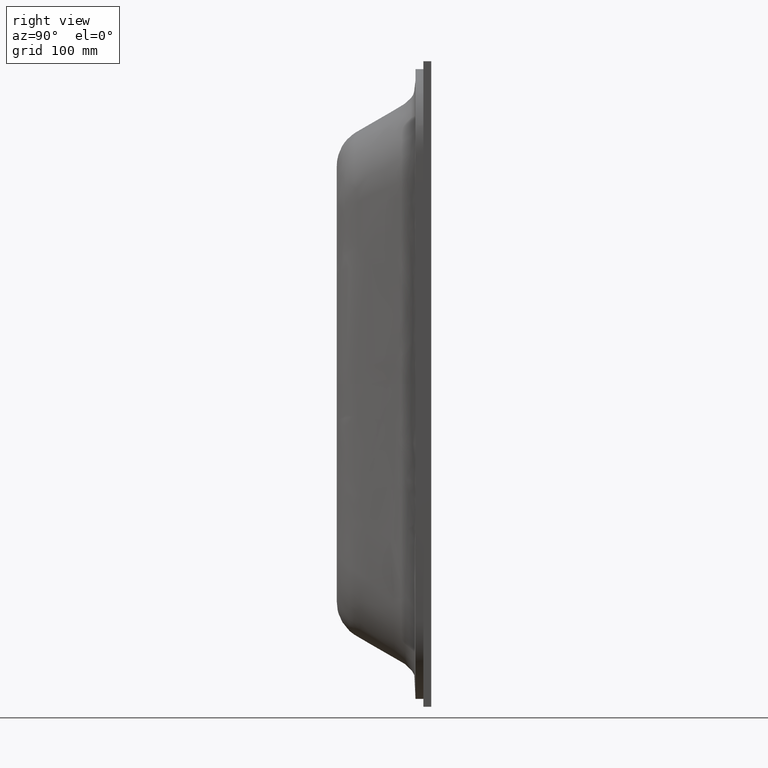
[diagram: clean part render]
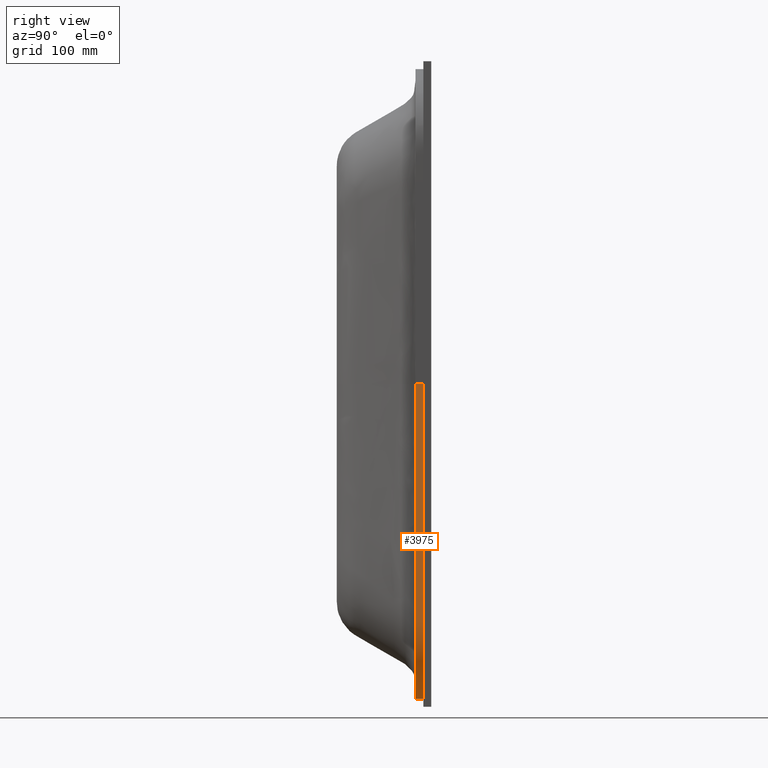
[diagram: same view with one face highlighted and labeled with its STEP entity id]
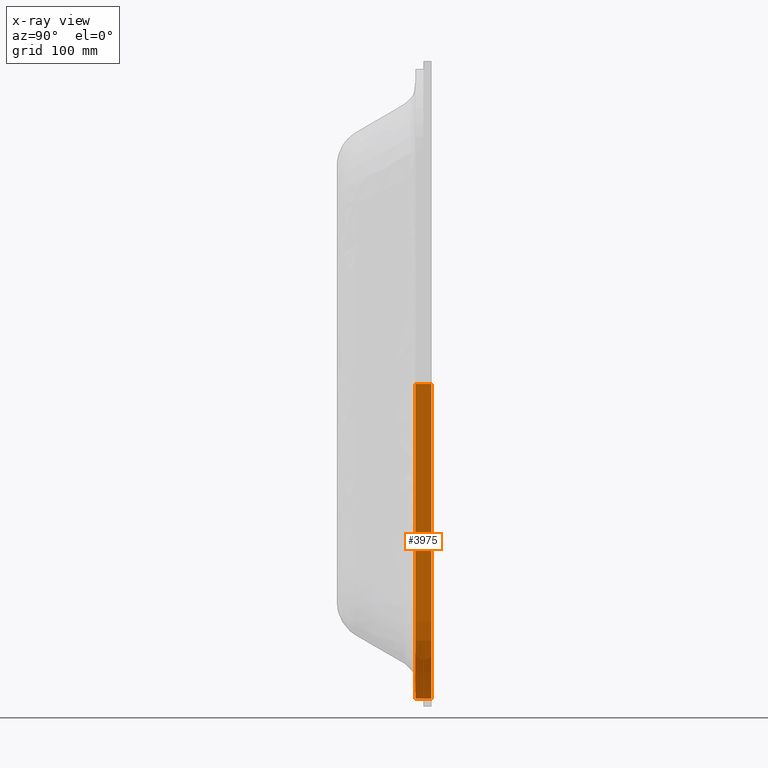
[diagram: x-ray of the same camera — body ghosted, the highlighted face saturated]
A machine part, right view. The second image highlights one B-rep face of the part: STEP entity #3975.
The next image is the same camera in x-ray: the body ghosted, the highlighted face saturated — about 0% of this face is hidden behind the body in this view.
In plain terms, the highlighted face is a freeform B-spline surface patch.
Its self-contained STEP definition (entity closure, byte-faithful):
#13 = CARTESIAN_POINT ( 'NONE',  ( 171.5384813318388500, 113.3333333333349500, -371.5384813318382800 ) ) ;
#30 = CARTESIAN_POINT ( 'NONE',  ( 66.66666666666529300, 113.3333333333351200, -400.0000000000002300 ) ) ;
#47 = CARTESIAN_POINT ( 'NONE',  ( 199.9999999999998900, 120.0000000000007000, 83.86880855999980600 ) ) ;
#61 = CARTESIAN_POINT ( 'NONE',  ( -171.5384813318385100, 113.3333333333351900, -371.5384813318385700 ) ) ;
#64 = CARTESIAN_POINT ( 'NONE',  ( 200.0000000000000900, 106.6666666666673700, -174.5500520533330800 ) ) ;
#70 = CARTESIAN_POINT ( 'NONE',  ( -187.6607435241636200, 100.0000000000010100, -350.4493998604104900 ) ) ;
#82 = CARTESIAN_POINT ( 'NONE',  ( 200.0000000000000000, 106.6666666666676500, -262.1250433777776200 ) ) ;
#100 = CARTESIAN_POINT ( 'NONE',  ( 199.9999999999999400, 106.6666666666669700, -27.95626951999968000 ) ) ;
#117 = CARTESIAN_POINT ( 'NONE',  ( 199.9999999999998600, 106.6666666666670700, -83.86880855999928000 ) ) ;
#134 = CARTESIAN_POINT ( 'NONE',  ( 200.0000000000000600, 106.6666666666669100, -6.212504337777676100 ) ) ;
#145 = CARTESIAN_POINT ( 'NONE',  ( 199.9999999999999700, 106.6666666666669400, -15.53126084444420000 ) ) ;
#154 = CARTESIAN_POINT ( 'NONE',  ( 200.0000000000000600, 113.3333333333339400, 1.431146867680865900E-014 ) ) ;
#170 = CARTESIAN_POINT ( 'NONE',  ( 200.0000000000000600, 106.6666666666668800, 3.122502256758252800E-014 ) ) ;
#177 = CARTESIAN_POINT ( 'NONE',  ( -171.5384813318384500, 100.0000000000009500, -371.5384813318386300 ) ) ;
#178 = CARTESIAN_POINT ( 'NONE',  ( 200.0000000000000300, 113.3333333333338700, 15.53126084444435400 ) ) ;
#187 = CARTESIAN_POINT ( 'NONE',  ( 200.0000000000000600, 113.3333333333339100, 6.212504337777739100 ) ) ;
#200 = CARTESIAN_POINT ( 'NONE',  ( 199.9999999999999700, 113.3333333333336000, 83.86880855999980600 ) ) ;
#209 = CARTESIAN_POINT ( 'NONE',  ( 200.0000000000000000, 113.3333333333338300, 27.95626951999984300 ) ) ;
#217 = CARTESIAN_POINT ( 'NONE',  ( 199.9999999999999700, 113.3333333333332400, 262.1250433777780100 ) ) ;
#228 = CARTESIAN_POINT ( 'NONE',  ( 197.6520662592156200, 113.3333333333330400, 326.2865120157423500 ) ) ;
#240 = CARTESIAN_POINT ( 'NONE',  ( 200.0000000000000600, 113.3333333333330900, 308.8402994666666400 ) ) ;
#248 = CARTESIAN_POINT ( 'NONE',  ( 171.5384813318387400, 113.3333333333329200, 371.5384813318390200 ) ) ;
#263 = CARTESIAN_POINT ( 'NONE',  ( 187.6607435241637900, 113.3333333333330300, 350.4493998604110600 ) ) ;
#269 = CARTESIAN_POINT ( 'NONE',  ( -197.6520662592154500, 100.0000000000008800, -326.2865120157416100 ) ) ;
#273 = CARTESIAN_POINT ( 'NONE',  ( 200.0000000000000600, 113.3333333333334800, 174.5500520533332500 ) ) ;
#281 = CARTESIAN_POINT ( 'NONE',  ( 126.2865120157418600, 113.3333333333328600, 397.6520662592160400 ) ) ;
#297 = CARTESIAN_POINT ( 'NONE',  ( 200.0000000000001100, 106.6666666666677400, -308.8402994666660100 ) ) ;
#305 = CARTESIAN_POINT ( 'NONE',  ( -150.4493998604102700, 120.0000000000023300, -387.6607435241638800 ) ) ;
#315 = CARTESIAN_POINT ( 'NONE',  ( -66.66666666666591800, 113.3333333333352600, -400.0000000000000600 ) ) ;
#345 = CARTESIAN_POINT ( 'NONE',  ( -197.6520662592155600, 113.3333333333350800, -326.2865120157416600 ) ) ;
#353 = CARTESIAN_POINT ( 'NONE',  ( -187.6607435241635900, 120.0000000000022700, -350.4493998604103200 ) ) ;
#366 = CARTESIAN_POINT ( 'NONE',  ( -199.9999999999998900, 113.3333333333337800, 162.1250433777783300 ) ) ;
#375 = CARTESIAN_POINT ( 'NONE',  ( 66.66666666666587600, 113.3333333333329300, 400.0000000000005100 ) ) ;
#383 = CARTESIAN_POINT ( 'NONE',  ( 150.4493998604104900, 113.3333333333329700, 387.6607435241644500 ) ) ;
#403 = CARTESIAN_POINT ( 'NONE',  ( -199.9999999999997400, 113.3333333333335400, 262.1250433777775000 ) ) ;
#405 = CARTESIAN_POINT ( 'NONE',  ( 108.8402994666662400, 113.3333333333329000, 400.0000000000006800 ) ) ;
#415 = CARTESIAN_POINT ( 'NONE',  ( -66.66666666666479600, 113.3333333333330600, 400.0000000000005700 ) ) ;
#438 = CARTESIAN_POINT ( 'NONE',  ( -1.243218491116711800E-013, 113.3333333333329600, 400.0000000000005700 ) ) ;
#447 = CARTESIAN_POINT ( 'NONE',  ( -150.4493998604102400, 113.3333333333352800, -387.6607435241638800 ) ) ;
#462 = CARTESIAN_POINT ( 'NONE',  ( -171.5384813318385100, 120.0000000000022600, -371.5384813318385100 ) ) ;
#473 = CARTESIAN_POINT ( 'NONE',  ( -66.66666666666596100, 120.0000000000023300, -400.0000000000001100 ) ) ;
#482 = CARTESIAN_POINT ( 'NONE',  ( -197.6520662592156200, 120.0000000000021500, -326.2865120157416600 ) ) ;
#495 = CARTESIAN_POINT ( 'NONE',  ( -199.9999999999999400, 113.3333333333350300, -308.8402994666659000 ) ) ;
#509 = CARTESIAN_POINT ( 'NONE',  ( -199.9999999999998900, 113.3333333333345800, -162.1250433777766500 ) ) ;
#518 = CARTESIAN_POINT ( 'NONE',  ( -199.9999999999998900, 113.3333333333342000, 1.260565725876479800E-012 ) ) ;
#540 = CARTESIAN_POINT ( 'NONE',  ( 200.0000000000000600, 120.0000000000005800, 174.5500520533332500 ) ) ;
#541 = CARTESIAN_POINT ( 'NONE',  ( 200.0000000000000600, 113.3333333333339700, -6.212504337777710700 ) ) ;
#548 = CARTESIAN_POINT ( 'NONE',  ( 108.8402994666665100, 113.3333333333351200, -400.0000000000000600 ) ) ;
#568 = CARTESIAN_POINT ( 'NONE',  ( 199.9999999999999700, 120.0000000000009000, 27.95626951999984300 ) ) ;
#571 = CARTESIAN_POINT ( 'NONE',  ( 199.9999999999999400, 120.0000000000003600, 262.1250433777780700 ) ) ;
#579 = CARTESIAN_POINT ( 'NONE',  ( 197.6520662592156700, 106.6666666666677500, -326.2865120157416600 ) ) ;
#601 = CARTESIAN_POINT ( 'NONE',  ( 150.4493998604106700, 113.3333333333350800, -387.6607435241636500 ) ) ;
#607 = CARTESIAN_POINT ( 'NONE',  ( 8.673617379884035500E-015, 120.0000000000022700, -400.0000000000001100 ) ) ;
#623 = CARTESIAN_POINT ( 'NONE',  ( -108.8402994666658400, 120.0000000000023000, -400.0000000000000000 ) ) ;
#629 = CARTESIAN_POINT ( 'NONE',  ( -199.9999999999997700, 113.3333333333349300, -262.1250433777772200 ) ) ;
#652 = CARTESIAN_POINT ( 'NONE',  ( -150.4493998604104400, 113.3333333333331000, 387.6607435241642700 ) ) ;
#654 = CARTESIAN_POINT ( 'NONE',  ( -197.6520662592154700, 113.3333333333332900, 326.2865120157422300 ) ) ;
#661 = CARTESIAN_POINT ( 'NONE',  ( -199.9999999999999400, 113.3333333333333400, 308.8402994666666400 ) ) ;
#684 = CARTESIAN_POINT ( 'NONE',  ( -171.5384813318386500, 113.3333333333331300, 371.5384813318390200 ) ) ;
#685 = CARTESIAN_POINT ( 'NONE',  ( -187.6607435241637300, 113.3333333333332100, 350.4493998604109500 ) ) ;
#689 = CARTESIAN_POINT ( 'NONE',  ( 200.0000000000000600, 113.3333333333339400, 1.431146867680865900E-014 ) ) ;
#704 = CARTESIAN_POINT ( 'NONE',  ( -108.8402994666663200, 113.3333333333330200, 400.0000000000006800 ) ) ;
#717 = CARTESIAN_POINT ( 'NONE',  ( -126.2865120157419800, 113.3333333333330600, 397.6520662592161000 ) ) ;
#724 = CARTESIAN_POINT ( 'NONE',  ( -126.2865120157415400, 120.0000000000023400, -397.6520662592153600 ) ) ;
#735 = CARTESIAN_POINT ( 'NONE',  ( 126.2865120157421200, 113.3333333333350900, -397.6520662592155900 ) ) ;
#752 = CARTESIAN_POINT ( 'NONE',  ( 197.6520662592156400, 113.3333333333348100, -326.2865120157416100 ) ) ;
#771 = CARTESIAN_POINT ( 'NONE',  ( -126.2865120157415400, 113.3333333333352800, -397.6520662592155300 ) ) ;
#785 = CARTESIAN_POINT ( 'NONE',  ( 200.0000000000000300, 113.3333333333339800, -15.53126084444427800 ) ) ;
#792 = CARTESIAN_POINT ( 'NONE',  ( -199.9999999999998900, 113.3333333333341800, 1.068589661201713200E-012 ) ) ;
#803 = CARTESIAN_POINT ( 'NONE',  ( 200.0000000000000600, 120.0000000000009800, 6.212504337777740000 ) ) ;
#814 = CARTESIAN_POINT ( 'NONE',  ( -108.8402994666658400, 113.3333333333352500, -400.0000000000000600 ) ) ;
#816 = CARTESIAN_POINT ( 'NONE',  ( 200.0000000000000000, 113.3333333333340100, -27.95626951999980400 ) ) ;
#834 = CARTESIAN_POINT ( 'NONE',  ( -187.6607435241636200, 113.3333333333352000, -350.4493998604103800 ) ) ;
#852 = CARTESIAN_POINT ( 'NONE',  ( 200.0000000000000000, 120.0000000000009700, 15.53126084444435600 ) ) ;
#869 = CARTESIAN_POINT ( 'NONE',  ( 200.0000000000000600, 120.0000000000010200, -2.602085213965210600E-015 ) ) ;
#885 = CARTESIAN_POINT ( 'NONE',  ( 200.0000000000001100, 113.3333333333347900, -308.8402994666659500 ) ) ;
#894 = CARTESIAN_POINT ( 'NONE',  ( 3.267062546422987100E-014, 113.3333333333352000, -400.0000000000001100 ) ) ;
#902 = CARTESIAN_POINT ( 'NONE',  ( 187.6607435241637900, 106.6666666666678900, -350.4493998604103200 ) ) ;
#920 = CARTESIAN_POINT ( 'NONE',  ( 187.6607435241638800, 113.3333333333349500, -350.4493998604102700 ) ) ;
#930 = CARTESIAN_POINT ( 'NONE',  ( 199.9999999999999400, 113.3333333333341500, -83.86880855999956500 ) ) ;
#938 = CARTESIAN_POINT ( 'NONE',  ( 200.0000000000000900, 113.3333333333344200, -174.5500520533330800 ) ) ;
#953 = CARTESIAN_POINT ( 'NONE',  ( 200.0000000000000000, 113.3333333333347100, -262.1250433777776200 ) ) ;
#961 = CARTESIAN_POINT ( 'NONE',  ( 171.5384813318389400, 120.0000000000020600, -371.5384813318381700 ) ) ;
#969 = CARTESIAN_POINT ( 'NONE',  ( 187.6607435241639600, 120.0000000000020500, -350.4493998604102100 ) ) ;
#983 = CARTESIAN_POINT ( 'NONE',  ( 197.6520662592156200, 120.0000000000018900, -326.2865120157416100 ) ) ;
#992 = CARTESIAN_POINT ( 'NONE',  ( 200.0000000000001100, 120.0000000000018800, -308.8402994666659500 ) ) ;
#999 = CARTESIAN_POINT ( 'NONE',  ( 200.0000000000000000, 120.0000000000018000, -262.1250433777776700 ) ) ;
#1012 = CARTESIAN_POINT ( 'NONE',  ( 200.0000000000000900, 120.0000000000015200, -174.5500520533330800 ) ) ;
#1019 = CARTESIAN_POINT ( 'NONE',  ( 200.0000000000000600, 120.0000000000012800, -83.86880855999983500 ) ) ;
#1024 = CARTESIAN_POINT ( 'NONE',  ( 200.0000000000000600, 120.0000000000011200, -27.95626951999992500 ) ) ;
#1038 = CARTESIAN_POINT ( 'NONE',  ( 200.0000000000000600, 120.0000000000010800, -15.53126084444435600 ) ) ;
#1045 = CARTESIAN_POINT ( 'NONE',  ( 200.0000000000000600, 120.0000000000010700, -6.212504337777745400 ) ) ;
#1052 = CARTESIAN_POINT ( 'NONE',  ( 200.0000000000000600, 120.0000000000010200, -2.602085213965210600E-015 ) ) ;
#1113 = CARTESIAN_POINT ( 'NONE',  ( 66.66666666666473900, 120.0000000000021600, -400.0000000000003400 ) ) ;
#1156 = CARTESIAN_POINT ( 'NONE',  ( 200.0000000000000600, 99.99999999999975800, 6.212504337777739100 ) ) ;
#1468 = CARTESIAN_POINT ( 'NONE',  ( 200.0000000000000300, 99.99999999999977300, 4.813857645835639700E-014 ) ) ;
#1471 = CARTESIAN_POINT ( 'NONE',  ( 200.0000000000000600, 99.99999999999970200, 15.53126084444435200 ) ) ;
#1503 = CARTESIAN_POINT ( 'NONE',  ( 200.0000000000000600, 99.99999999999964500, 27.95626951999983900 ) ) ;
#1512 = EDGE_CURVE ( 'NONE', #9697, #7264, #7363, .T. ) ;
#1513 = CARTESIAN_POINT ( 'NONE',  ( 108.8402994666667500, 120.0000000000022000, -400.0000000000000000 ) ) ;
#1522 = CARTESIAN_POINT ( 'NONE',  ( 200.0000000000001700, 99.99999999999943200, 83.86880855999979200 ) ) ;
#1538 = CARTESIAN_POINT ( 'NONE',  ( 200.0000000000000300, 99.99999999999926100, 174.5500520533332200 ) ) ;
#1553 = CARTESIAN_POINT ( 'NONE',  ( 200.0000000000000000, 99.99999999999900500, 262.1250433777779600 ) ) ;
#1568 = CARTESIAN_POINT ( 'NONE',  ( 200.0000000000000300, 99.99999999999890600, 308.8402994666665800 ) ) ;
#1583 = CARTESIAN_POINT ( 'NONE',  ( 187.6607435241639100, 99.99999999999884900, 350.4493998604109500 ) ) ;
#1598 = CARTESIAN_POINT ( 'NONE',  ( 171.5384813318388800, 99.99999999999872100, 371.5384813318387400 ) ) ;
#1606 = CARTESIAN_POINT ( 'NONE',  ( 150.4493998604107500, 99.99999999999876400, 387.6607435241641600 ) ) ;
#1612 = CARTESIAN_POINT ( 'NONE',  ( 126.2865120157422900, 99.99999999999867800, 397.6520662592161000 ) ) ;
#1625 = CARTESIAN_POINT ( 'NONE',  ( 108.8402994666666800, 99.99999999999872100, 400.0000000000006300 ) ) ;
#1628 = CARTESIAN_POINT ( 'NONE',  ( 197.6520662592155600, 99.99999999999886300, 326.2865120157420600 ) ) ;
#1637 = CARTESIAN_POINT ( 'NONE',  ( 66.66666666666479600, 99.99999999999873500, 400.0000000000003400 ) ) ;
#1652 = EDGE_CURVE ( 'NONE', #9697, #9683, #9018, .T. ) ;
#1657 = CARTESIAN_POINT ( 'NONE',  ( -1.092875789865388500E-013, 99.99999999999874900, 400.0000000000006300 ) ) ;
#2072 = CARTESIAN_POINT ( 'NONE',  ( -171.5384813318387100, 120.0000000000001800, 371.5384813318389700 ) ) ;
#2153 = CARTESIAN_POINT ( 'NONE',  ( -150.4493998604105500, 120.0000000000001700, 387.6607435241642200 ) ) ;
#2168 = ORIENTED_EDGE ( 'NONE', *, *, #10226, .F. ) ;
#2171 = CARTESIAN_POINT ( 'NONE',  ( -108.8402994666665500, 120.0000000000000900, 400.0000000000006800 ) ) ;
#2269 = B_SPLINE_CURVE_WITH_KNOTS ( 'NONE', 3,
 ( #3351, #3107, #3077, #3070 ),
 .UNSPECIFIED., .F., .F.,
 ( 4, 4 ),
 ( 0.0000000000000000000, 1.000000000000000000 ),
 .UNSPECIFIED. ) ;
#2446 = CARTESIAN_POINT ( 'NONE',  ( -126.2865120157422000, 120.0000000000001100, 397.6520662592161000 ) ) ;
#2570 = CARTESIAN_POINT ( 'NONE',  ( 200.0000000000000600, 120.0000000000010200, -2.602085213965210600E-015 ) ) ;
#2603 = CARTESIAN_POINT ( 'NONE',  ( -199.9999999999998900, 120.0000000000014400, -62.12504337777745900 ) ) ;
#2621 = CARTESIAN_POINT ( 'NONE',  ( -199.9999999999998900, 120.0000000000012800, 2.622066916776105100E-013 ) ) ;
#2990 = CARTESIAN_POINT ( 'NONE',  ( 126.2865120157416800, 119.9999999999999400, 397.6520662592160400 ) ) ;
#3070 = CARTESIAN_POINT ( 'NONE',  ( 200.0000000000000600, 120.0000000000010200, -2.602085213965210600E-015 ) ) ;
#3076 = CARTESIAN_POINT ( 'NONE',  ( -66.66666666666424100, 120.0000000000001600, 400.0000000000005700 ) ) ;
#3077 = CARTESIAN_POINT ( 'NONE',  ( 200.0000000000000600, 113.3333333333339400, 1.431146867680865900E-014 ) ) ;
#3088 = CARTESIAN_POINT ( 'NONE',  ( -1.318389841742373400E-013, 120.0000000000000100, 400.0000000000005700 ) ) ;
#3098 = CARTESIAN_POINT ( 'NONE',  ( 66.66666666666640100, 120.0000000000000000, 400.0000000000005700 ) ) ;
#3107 = CARTESIAN_POINT ( 'NONE',  ( 200.0000000000000600, 106.6666666666668800, 3.122502256758252800E-014 ) ) ;
#3191 = CARTESIAN_POINT ( 'NONE',  ( 108.8402994666660100, 119.9999999999999900, 400.0000000000007400 ) ) ;
#3301 = CARTESIAN_POINT ( 'NONE',  ( 150.4493998604103500, 120.0000000000000300, 387.6607435241645600 ) ) ;
#3351 = CARTESIAN_POINT ( 'NONE',  ( 200.0000000000000300, 99.99999999999977300, 4.813857645835639700E-014 ) ) ;
#3420 = CARTESIAN_POINT ( 'NONE',  ( 200.0000000000000300, 99.99999999999977300, 4.813857645835639700E-014 ) ) ;
#3427 = CARTESIAN_POINT ( 'NONE',  ( -199.9999999999998900, 99.99999999999997200, 7.977230276641950600E-013 ) ) ;
#3439 = CARTESIAN_POINT ( 'NONE',  ( -199.9999999999998900, 120.0000000000012800, 2.622066916776105100E-013 ) ) ;
#3702 = B_SPLINE_CURVE_WITH_KNOTS ( 'NONE', 3,
 ( #2621, #2603, #10025, #10399, #10293, #482, #353, #462, #305, #724, #623, #473, #607, #1113, #1513, #9494, #8468, #961, #969, #983, #992, #999, #1012, #1019, #1024, #1038, #1045, #1052 ),
 .UNSPECIFIED., .F., .F.,
 ( 4, 1, 2, 1, 1, 1, 1, 1, 2, 1, 2, 1, 1, 1, 1, 1, 2, 1, 1, 1, 1, 4 ),
 ( 0.5000000000000007800, 0.5833333333333339300, 0.6341380686474374900, 0.6459962756146738800, 0.6578544825819102600, 0.6697126895491463100, 0.6815708965163827000, 0.6934291034836190800, 0.7052873104508552400, 0.7500000000000004400, 0.7947126895491455300, 0.8065708965163818100, 0.8184291034836181900, 0.8302873104508545800, 0.8421455174180907400, 0.8540037243853271200, 0.8658619313525635100, 0.9166666666666667400, 0.9833333333333332800, 0.9875000000000000400, 0.9916666666666667000, 1.000000000000000000 ),
 .UNSPECIFIED. ) ;
#3756 = EDGE_CURVE ( 'NONE', #9683, #10859, #3702, .T. ) ;
#3795 = CARTESIAN_POINT ( 'NONE',  ( 171.5384813318386800, 120.0000000000000000, 371.5384813318391900 ) ) ;
#3947 = CARTESIAN_POINT ( 'NONE',  ( -66.66666666666584700, 100.0000000000010400, -399.9999999999998900 ) ) ;
#3975 = ADVANCED_FACE ( 'NONE', ( #10191 ), #5296, .T. ) ;
#4178 = CARTESIAN_POINT ( 'NONE',  ( 126.2865120157417100, 100.0000000000009200, -397.6520662592155900 ) ) ;
#4379 = CARTESIAN_POINT ( 'NONE',  ( -126.2865120157415400, 100.0000000000010700, -397.6520662592157600 ) ) ;
#5139 = CARTESIAN_POINT ( 'NONE',  ( 200.0000000000000300, 99.99999999999977300, 4.813857645835639700E-014 ) ) ;
#5296 = B_SPLINE_SURFACE_WITH_KNOTS ( 'NONE', 3, 3, ( 
 ( #1468, #1156, #1471, #1503, #1522, #1538, #1553, #1568, #1628, #1583, #1598, #1606, #1612, #1625, #1637, #1657, #10484, #8872, #10652, #9896, #9859, #9848, #9820, #9736, #9846, #9684, #9793, #9764, #9725, #9694, #9649, #9637, #9575, #9592, #9577, #9543, #9528, #9525, #9506, #9497, #9453, #9481, #9407, #9439, #9420, #9362, #9334, #9278, #9393, #9280, #9239, #9166, #9263 ),
 ( #9156, #9085, #9158, #9123, #9087, #9063, #9055, #9021, #8980, #8997, #8944, #8662, #8649, #8982, #8954, #8828, #8789, #8839, #8757, #8747, #8786, #8691, #8509, #8706, #8532, #10316, #8499, #8536, #8518, #8457, #8434, #8417, #8394, #8335, #8371, #8367, #8321, #8286, #8284, #8247, #8244, #8229, #8217, #902, #579, #297, #82, #64, #117, #100, #145, #134, #170 ),
 ( #154, #187, #178, #209, #200, #273, #217, #240, #228, #263, #248, #383, #281, #405, #375, #438, #415, #704, #717, #652, #684, #685, #654, #661, #403, #366, #518, #509, #629, #495, #345, #834, #61, #447, #771, #814, #315, #894, #30, #548, #735, #601, #13, #920, #752, #885, #953, #938, #930, #816, #785, #541, #689 ),
 ( #869, #803, #852, #568, #47, #540, #571, #9317, #9220, #9206, #3795, #3301, #2990, #3191, #3098, #3088, #3076, #2171, #2446, #2153, #2072, #10919, #10783, #10756, #10703, #10679, #10447, #10431, #10414, #10400, #10384, #10369, #10326, #10313, #10295, #10277, #10265, #10234, #10196, #10168, #10084, #10068, #10045, #10036, #10012, #10004, #9968, #9942, #9935, #9910, #9874, #9861, #9834 ) ),
 .UNSPECIFIED., .F., .T., .F.,
 ( 4, 4 ),
 ( 4, 1, 1, 1, 1, 2, 1, 1, 1, 1, 1, 2, 1, 2, 1, 1, 1, 1, 1, 2, 1, 1, 1, 2, 1, 1, 1, 1, 1, 2, 1, 2, 1, 1, 1, 1, 1, 2, 1, 1, 1, 1, 4 ),
 ( 0.0000000000000000000, 1.000000000000000000 ),
 ( 0.0000000000000000000, 0.008333333333333303700, 0.01249999999999995600, 0.01666666666666660700, 0.08333333333333337000, 0.1341380686474368300, 0.1459962756146732100, 0.1578544825819095900, 0.1697126895491458700, 0.1815708965163822500, 0.1934291034836186400, 0.2052873104508549100, 0.2500000000000000000, 0.2947126895491455300, 0.3065708965163818100, 0.3184291034836181900, 0.3302873104508543500, 0.3421455174180907400, 0.3540037243853271200, 0.3658619313525632900, 0.4166666666666666300, 0.5000000000000000000, 0.5833333333333332600, 0.6341380686474369400, 0.6459962756146733200, 0.6578544825819097100, 0.6697126895491458700, 0.6815708965163822500, 0.6934291034836186400, 0.7052873104508548000, 0.7500000000000000000, 0.7947126895491452000, 0.8065708965163815900, 0.8184291034836179700, 0.8302873104508543500, 0.8421455174180905200, 0.8540037243853269000, 0.8658619313525632900, 0.9166666666666666300, 0.9833333333333332800, 0.9875000000000000400, 0.9916666666666667000, 1.000000000000000000 ),
 .UNSPECIFIED. ) ;
#5826 = CARTESIAN_POINT ( 'NONE',  ( -199.9999999999998900, 99.99999999999997200, 7.977230276641950600E-013 ) ) ;
#6039 = CARTESIAN_POINT ( 'NONE',  ( -108.8402994666658100, 100.0000000000010500, -400.0000000000001100 ) ) ;
#6798 = CARTESIAN_POINT ( 'NONE',  ( 200.0000000000000000, 100.0000000000005400, -262.1250433777775600 ) ) ;
#7264 = VERTEX_POINT ( 'NONE', #3420 ) ;
#7363 = B_SPLINE_CURVE_WITH_KNOTS ( 'NONE', 3,
 ( #10236, #10589, #10209, #10543, #10311, #269, #70, #177, #10278, #4379, #6039, #3947, #7576, #8686, #8543, #4178, #8064, #8952, #9617, #8241, #10744, #6798, #9121, #9289, #10920, #10197, #9537, #5139 ),
 .UNSPECIFIED., .F., .F.,
 ( 4, 1, 2, 1, 1, 1, 1, 1, 2, 1, 2, 1, 1, 1, 1, 1, 2, 1, 1, 1, 1, 4 ),
 ( 0.5000000000000002200, 0.5833333333333334800, 0.6341380686474371600, 0.6459962756146735400, 0.6578544825819098200, 0.6697126895491459800, 0.6815708965163823600, 0.6934291034836187500, 0.7052873104508549100, 0.7500000000000001100, 0.7947126895491453100, 0.8065708965163817000, 0.8184291034836179700, 0.8302873104508543500, 0.8421455174180905200, 0.8540037243853269000, 0.8658619313525632900, 0.9166666666666667400, 0.9833333333333332800, 0.9875000000000000400, 0.9916666666666667000, 1.000000000000000000 ),
 .UNSPECIFIED. ) ;
#7576 = CARTESIAN_POINT ( 'NONE',  ( 8.066464163292150500E-014, 100.0000000000010100, -400.0000000000001100 ) ) ;
#7923 = CARTESIAN_POINT ( 'NONE',  ( -199.9999999999998900, 120.0000000000012800, 2.622066916776105100E-013 ) ) ;
#7988 = EDGE_LOOP ( 'NONE', ( #10341, #10819, #8692, #2168 ) ) ;
#8064 = CARTESIAN_POINT ( 'NONE',  ( 150.4493998604103800, 100.0000000000009400, -387.6607435241638800 ) ) ;
#8217 = CARTESIAN_POINT ( 'NONE',  ( 171.5384813318387400, 106.6666666666679100, -371.5384813318384500 ) ) ;
#8229 = CARTESIAN_POINT ( 'NONE',  ( 150.4493998604105500, 106.6666666666680500, -387.6607435241637600 ) ) ;
#8241 = CARTESIAN_POINT ( 'NONE',  ( 197.6520662592156700, 100.0000000000006400, -326.2865120157416600 ) ) ;
#8244 = CARTESIAN_POINT ( 'NONE',  ( 126.2865120157419200, 106.6666666666680400, -397.6520662592155900 ) ) ;
#8247 = CARTESIAN_POINT ( 'NONE',  ( 108.8402994666662800, 106.6666666666680500, -400.0000000000000600 ) ) ;
#8284 = CARTESIAN_POINT ( 'NONE',  ( 66.66666666666587600, 106.6666666666680600, -400.0000000000001100 ) ) ;
#8286 = CARTESIAN_POINT ( 'NONE',  ( 5.666763354857570700E-014, 106.6666666666680900, -400.0000000000001100 ) ) ;
#8321 = CARTESIAN_POINT ( 'NONE',  ( -66.66666666666589000, 106.6666666666681400, -399.9999999999999400 ) ) ;
#8335 = CARTESIAN_POINT ( 'NONE',  ( -150.4493998604102400, 106.6666666666681500, -387.6607435241638200 ) ) ;
#8367 = CARTESIAN_POINT ( 'NONE',  ( -108.8402994666658400, 106.6666666666681400, -400.0000000000000600 ) ) ;
#8371 = CARTESIAN_POINT ( 'NONE',  ( -126.2865120157415400, 106.6666666666681600, -397.6520662592156400 ) ) ;
#8394 = CARTESIAN_POINT ( 'NONE',  ( -171.5384813318384800, 106.6666666666680500, -371.5384813318385700 ) ) ;
#8417 = CARTESIAN_POINT ( 'NONE',  ( -187.6607435241636200, 106.6666666666680900, -350.4493998604104400 ) ) ;
#8434 = CARTESIAN_POINT ( 'NONE',  ( -197.6520662592155000, 106.6666666666679500, -326.2865120157416100 ) ) ;
#8457 = CARTESIAN_POINT ( 'NONE',  ( -199.9999999999999400, 106.6666666666679400, -308.8402994666659500 ) ) ;
#8468 = CARTESIAN_POINT ( 'NONE',  ( 150.4493998604108100, 120.0000000000021700, -387.6607435241635400 ) ) ;
#8499 = CARTESIAN_POINT ( 'NONE',  ( -199.9999999999998900, 106.6666666666671000, 1.015391474605091200E-012 ) ) ;
#8509 = CARTESIAN_POINT ( 'NONE',  ( -197.6520662592155000, 106.6666666666661900, 326.2865120157422300 ) ) ;
#8518 = CARTESIAN_POINT ( 'NONE',  ( -199.9999999999998300, 106.6666666666678100, -262.1250433777771600 ) ) ;
#8532 = CARTESIAN_POINT ( 'NONE',  ( -199.9999999999997400, 106.6666666666664000, 262.1250433777775000 ) ) ;
#8536 = CARTESIAN_POINT ( 'NONE',  ( -199.9999999999998900, 106.6666666666675100, -162.1250433777767600 ) ) ;
#8543 = CARTESIAN_POINT ( 'NONE',  ( 108.8402994666660200, 100.0000000000009400, -400.0000000000001100 ) ) ;
#8649 = CARTESIAN_POINT ( 'NONE',  ( 126.2865120157420900, 106.6666666666657900, 397.6520662592161000 ) ) ;
#8662 = CARTESIAN_POINT ( 'NONE',  ( 150.4493998604106100, 106.6666666666658800, 387.6607435241642700 ) ) ;
#8686 = CARTESIAN_POINT ( 'NONE',  ( 66.66666666666643000, 100.0000000000010100, -400.0000000000000000 ) ) ;
#8691 = CARTESIAN_POINT ( 'NONE',  ( -187.6607435241636200, 106.6666666666661500, 350.4493998604109500 ) ) ;
#8692 = ORIENTED_EDGE ( 'NONE', *, *, #3756, .T. ) ;
#8706 = CARTESIAN_POINT ( 'NONE',  ( -199.9999999999999400, 106.6666666666662700, 308.8402994666665800 ) ) ;
#8747 = CARTESIAN_POINT ( 'NONE',  ( -150.4493998604103200, 106.6666666666660200, 387.6607435241643300 ) ) ;
#8757 = CARTESIAN_POINT ( 'NONE',  ( -126.2865120157417600, 106.6666666666659600, 397.6520662592160400 ) ) ;
#8786 = CARTESIAN_POINT ( 'NONE',  ( -171.5384813318386000, 106.6666666666660300, 371.5384813318391400 ) ) ;
#8789 = CARTESIAN_POINT ( 'NONE',  ( -66.66666666666535000, 106.6666666666659300, 400.0000000000005700 ) ) ;
#8828 = CARTESIAN_POINT ( 'NONE',  ( -1.168047140491050000E-013, 106.6666666666658800, 400.0000000000006300 ) ) ;
#8839 = CARTESIAN_POINT ( 'NONE',  ( -108.8402994666661000, 106.6666666666659300, 400.0000000000006800 ) ) ;
#8872 = CARTESIAN_POINT ( 'NONE',  ( -108.8402994666658500, 99.99999999999882000, 400.0000000000006800 ) ) ;
#8944 = CARTESIAN_POINT ( 'NONE',  ( 171.5384813318388200, 106.6666666666658300, 371.5384813318389100 ) ) ;
#8952 = CARTESIAN_POINT ( 'NONE',  ( 171.5384813318386300, 100.0000000000007800, -371.5384813318386300 ) ) ;
#8954 = CARTESIAN_POINT ( 'NONE',  ( 66.66666666666533600, 106.6666666666658500, 400.0000000000004000 ) ) ;
#8980 = CARTESIAN_POINT ( 'NONE',  ( 197.6520662592155900, 106.6666666666659800, 326.2865120157421800 ) ) ;
#8982 = CARTESIAN_POINT ( 'NONE',  ( 108.8402994666664500, 106.6666666666658300, 400.0000000000006800 ) ) ;
#8997 = CARTESIAN_POINT ( 'NONE',  ( 187.6607435241638500, 106.6666666666659600, 350.4493998604110100 ) ) ;
#9018 = B_SPLINE_CURVE_WITH_KNOTS ( 'NONE', 3,
 ( #5826, #9207, #792, #7923 ),
 .UNSPECIFIED., .F., .F.,
 ( 4, 4 ),
 ( 0.0000000000000000000, 1.000000000000000000 ),
 .UNSPECIFIED. ) ;
#9021 = CARTESIAN_POINT ( 'NONE',  ( 200.0000000000000600, 106.6666666666660300, 308.8402994666665800 ) ) ;
#9055 = CARTESIAN_POINT ( 'NONE',  ( 200.0000000000000000, 106.6666666666661600, 262.1250433777780100 ) ) ;
#9063 = CARTESIAN_POINT ( 'NONE',  ( 200.0000000000000300, 106.6666666666663900, 174.5500520533332200 ) ) ;
#9085 = CARTESIAN_POINT ( 'NONE',  ( 200.0000000000000600, 106.6666666666668600, 6.212504337777739100 ) ) ;
#9087 = CARTESIAN_POINT ( 'NONE',  ( 200.0000000000000900, 106.6666666666665300, 83.86880855999979200 ) ) ;
#9121 = CARTESIAN_POINT ( 'NONE',  ( 200.0000000000000900, 100.0000000000002400, -174.5500520533330800 ) ) ;
#9123 = CARTESIAN_POINT ( 'NONE',  ( 200.0000000000000300, 106.6666666666667400, 27.95626951999983900 ) ) ;
#9156 = CARTESIAN_POINT ( 'NONE',  ( 200.0000000000000600, 106.6666666666668800, 3.122502256758252800E-014 ) ) ;
#9158 = CARTESIAN_POINT ( 'NONE',  ( 200.0000000000000300, 106.6666666666668300, 15.53126084444435400 ) ) ;
#9166 = CARTESIAN_POINT ( 'NONE',  ( 200.0000000000000000, 99.99999999999978700, -6.212504337777641400 ) ) ;
#9206 = CARTESIAN_POINT ( 'NONE',  ( 187.6607435241637100, 120.0000000000001100, 350.4493998604111200 ) ) ;
#9207 = CARTESIAN_POINT ( 'NONE',  ( -199.9999999999998900, 106.6666666666670800, 8.673617379884035500E-013 ) ) ;
#9220 = CARTESIAN_POINT ( 'NONE',  ( 197.6520662592156200, 120.0000000000001100, 326.2865120157424600 ) ) ;
#9239 = CARTESIAN_POINT ( 'NONE',  ( 199.9999999999999400, 99.99999999999980100, -15.53126084444412100 ) ) ;
#9263 = CARTESIAN_POINT ( 'NONE',  ( 200.0000000000000300, 99.99999999999977300, 4.813857645835639700E-014 ) ) ;
#9278 = CARTESIAN_POINT ( 'NONE',  ( 200.0000000000000900, 100.0000000000002400, -174.5500520533330800 ) ) ;
#9280 = CARTESIAN_POINT ( 'NONE',  ( 199.9999999999998900, 99.99999999999982900, -27.95626951999955900 ) ) ;
#9289 = CARTESIAN_POINT ( 'NONE',  ( 199.9999999999997400, 99.99999999999991500, -83.86880855999901000 ) ) ;
#9317 = CARTESIAN_POINT ( 'NONE',  ( 200.0000000000000600, 120.0000000000001700, 308.8402994666666400 ) ) ;
#9334 = CARTESIAN_POINT ( 'NONE',  ( 200.0000000000000000, 100.0000000000005400, -262.1250433777775600 ) ) ;
#9362 = CARTESIAN_POINT ( 'NONE',  ( 200.0000000000001100, 100.0000000000006300, -308.8402994666660100 ) ) ;
#9393 = CARTESIAN_POINT ( 'NONE',  ( 199.9999999999997400, 99.99999999999991500, -83.86880855999901000 ) ) ;
#9407 = CARTESIAN_POINT ( 'NONE',  ( 171.5384813318386500, 100.0000000000007800, -371.5384813318386300 ) ) ;
#9420 = CARTESIAN_POINT ( 'NONE',  ( 197.6520662592156700, 100.0000000000006400, -326.2865120157416600 ) ) ;
#9439 = CARTESIAN_POINT ( 'NONE',  ( 187.6607435241637100, 100.0000000000008000, -350.4493998604104400 ) ) ;
#9453 = CARTESIAN_POINT ( 'NONE',  ( 126.2865120157417100, 100.0000000000009200, -397.6520662592155900 ) ) ;
#9481 = CARTESIAN_POINT ( 'NONE',  ( 150.4493998604103800, 100.0000000000009400, -387.6607435241638800 ) ) ;
#9494 = CARTESIAN_POINT ( 'NONE',  ( 126.2865120157423200, 120.0000000000021700, -397.6520662592155900 ) ) ;
#9497 = CARTESIAN_POINT ( 'NONE',  ( 108.8402994666660400, 100.0000000000009400, -400.0000000000001100 ) ) ;
#9506 = CARTESIAN_POINT ( 'NONE',  ( 66.66666666666643000, 100.0000000000010100, -400.0000000000000000 ) ) ;
#9525 = CARTESIAN_POINT ( 'NONE',  ( 8.066464163292153000E-014, 100.0000000000010100, -400.0000000000001100 ) ) ;
#9528 = CARTESIAN_POINT ( 'NONE',  ( -66.66666666666584700, 100.0000000000010400, -399.9999999999998900 ) ) ;
#9537 = CARTESIAN_POINT ( 'NONE',  ( 200.0000000000000000, 99.99999999999978700, -6.212504337777641400 ) ) ;
#9543 = CARTESIAN_POINT ( 'NONE',  ( -108.8402994666658300, 100.0000000000010500, -400.0000000000001100 ) ) ;
#9575 = CARTESIAN_POINT ( 'NONE',  ( -171.5384813318384500, 100.0000000000009500, -371.5384813318386300 ) ) ;
#9577 = CARTESIAN_POINT ( 'NONE',  ( -126.2865120157415400, 100.0000000000010700, -397.6520662592157600 ) ) ;
#9592 = CARTESIAN_POINT ( 'NONE',  ( -150.4493998604102100, 100.0000000000010800, -387.6607435241638200 ) ) ;
#9617 = CARTESIAN_POINT ( 'NONE',  ( 187.6607435241636800, 100.0000000000008000, -350.4493998604104400 ) ) ;
#9637 = CARTESIAN_POINT ( 'NONE',  ( -187.6607435241636500, 100.0000000000010100, -350.4493998604104900 ) ) ;
#9649 = CARTESIAN_POINT ( 'NONE',  ( -197.6520662592154500, 100.0000000000008800, -326.2865120157416100 ) ) ;
#9683 = VERTEX_POINT ( 'NONE', #3439 ) ;
#9684 = CARTESIAN_POINT ( 'NONE',  ( -199.9999999999998900, 99.99999999999951700, 162.1250433777780400 ) ) ;
#9694 = CARTESIAN_POINT ( 'NONE',  ( -199.9999999999999400, 100.0000000000008500, -308.8402994666659500 ) ) ;
#9697 = VERTEX_POINT ( 'NONE', #3427 ) ;
#9725 = CARTESIAN_POINT ( 'NONE',  ( -199.9999999999998900, 100.0000000000007100, -262.1250433777771600 ) ) ;
#9736 = CARTESIAN_POINT ( 'NONE',  ( -199.9999999999999400, 99.99999999999914700, 308.8402994666665800 ) ) ;
#9764 = CARTESIAN_POINT ( 'NONE',  ( -199.9999999999998900, 100.0000000000004400, -162.1250433777768500 ) ) ;
#9793 = CARTESIAN_POINT ( 'NONE',  ( -199.9999999999998900, 100.0000000000000000, 7.702172233337023500E-013 ) ) ;
#9820 = CARTESIAN_POINT ( 'NONE',  ( -197.6520662592155000, 99.99999999999906200, 326.2865120157422300 ) ) ;
#9834 = CARTESIAN_POINT ( 'NONE',  ( 200.0000000000000600, 120.0000000000010200, -2.602085213965210600E-015 ) ) ;
#9846 = CARTESIAN_POINT ( 'NONE',  ( -199.9999999999997400, 99.99999999999923300, 262.1250433777775600 ) ) ;
#9848 = CARTESIAN_POINT ( 'NONE',  ( -187.6607435241635100, 99.99999999999903400, 350.4493998604110100 ) ) ;
#9859 = CARTESIAN_POINT ( 'NONE',  ( -171.5384813318385400, 99.99999999999892000, 371.5384813318391900 ) ) ;
#9861 = CARTESIAN_POINT ( 'NONE',  ( 200.0000000000000600, 120.0000000000010700, -6.212504337777745400 ) ) ;
#9874 = CARTESIAN_POINT ( 'NONE',  ( 200.0000000000000600, 120.0000000000010800, -15.53126084444435600 ) ) ;
#9896 = CARTESIAN_POINT ( 'NONE',  ( -150.4493998604102700, 99.99999999999889200, 387.6607435241643900 ) ) ;
#9910 = CARTESIAN_POINT ( 'NONE',  ( 200.0000000000000600, 120.0000000000011200, -27.95626951999992500 ) ) ;
#9935 = CARTESIAN_POINT ( 'NONE',  ( 200.0000000000000600, 120.0000000000012800, -83.86880855999983500 ) ) ;
#9942 = CARTESIAN_POINT ( 'NONE',  ( 200.0000000000000900, 120.0000000000015200, -174.5500520533330800 ) ) ;
#9968 = CARTESIAN_POINT ( 'NONE',  ( 200.0000000000000000, 120.0000000000018000, -262.1250433777776700 ) ) ;
#10004 = CARTESIAN_POINT ( 'NONE',  ( 200.0000000000001100, 120.0000000000018800, -308.8402994666659500 ) ) ;
#10012 = CARTESIAN_POINT ( 'NONE',  ( 197.6520662592156200, 120.0000000000018900, -326.2865120157416100 ) ) ;
#10025 = CARTESIAN_POINT ( 'NONE',  ( -199.9999999999998900, 120.0000000000016600, -162.1250433777771300 ) ) ;
#10036 = CARTESIAN_POINT ( 'NONE',  ( 187.6607435241639600, 120.0000000000020500, -350.4493998604102100 ) ) ;
#10045 = CARTESIAN_POINT ( 'NONE',  ( 171.5384813318389400, 120.0000000000020600, -371.5384813318381700 ) ) ;
#10068 = CARTESIAN_POINT ( 'NONE',  ( 150.4493998604108100, 120.0000000000021700, -387.6607435241635400 ) ) ;
#10084 = CARTESIAN_POINT ( 'NONE',  ( 126.2865120157423200, 120.0000000000021700, -397.6520662592155900 ) ) ;
#10168 = CARTESIAN_POINT ( 'NONE',  ( 108.8402994666667500, 120.0000000000022000, -400.0000000000000000 ) ) ;
#10191 = FACE_OUTER_BOUND ( 'NONE', #7988, .T. ) ;
#10196 = CARTESIAN_POINT ( 'NONE',  ( 66.66666666666473900, 120.0000000000021600, -400.0000000000003400 ) ) ;
#10197 = CARTESIAN_POINT ( 'NONE',  ( 199.9999999999999400, 99.99999999999980100, -15.53126084444412100 ) ) ;
#10209 = CARTESIAN_POINT ( 'NONE',  ( -199.9999999999998900, 100.0000000000004400, -162.1250433777769900 ) ) ;
#10226 = EDGE_CURVE ( 'NONE', #7264, #10859, #2269, .T. ) ;
#10234 = CARTESIAN_POINT ( 'NONE',  ( 8.673617379884035500E-015, 120.0000000000022700, -400.0000000000001100 ) ) ;
#10236 = CARTESIAN_POINT ( 'NONE',  ( -199.9999999999998900, 99.99999999999997200, 7.977230276641950600E-013 ) ) ;
#10265 = CARTESIAN_POINT ( 'NONE',  ( -66.66666666666596100, 120.0000000000023300, -400.0000000000001100 ) ) ;
#10277 = CARTESIAN_POINT ( 'NONE',  ( -108.8402994666658400, 120.0000000000023000, -400.0000000000000000 ) ) ;
#10278 = CARTESIAN_POINT ( 'NONE',  ( -150.4493998604101800, 100.0000000000010800, -387.6607435241638200 ) ) ;
#10293 = CARTESIAN_POINT ( 'NONE',  ( -199.9999999999999700, 120.0000000000021000, -308.8402994666659000 ) ) ;
#10295 = CARTESIAN_POINT ( 'NONE',  ( -126.2865120157415400, 120.0000000000023400, -397.6520662592153600 ) ) ;
#10311 = CARTESIAN_POINT ( 'NONE',  ( -199.9999999999999400, 100.0000000000008500, -308.8402994666659500 ) ) ;
#10313 = CARTESIAN_POINT ( 'NONE',  ( -150.4493998604102700, 120.0000000000023300, -387.6607435241638800 ) ) ;
#10316 = CARTESIAN_POINT ( 'NONE',  ( -199.9999999999998900, 106.6666666666666400, 162.1250433777781800 ) ) ;
#10326 = CARTESIAN_POINT ( 'NONE',  ( -171.5384813318385100, 120.0000000000022600, -371.5384813318385100 ) ) ;
#10341 = ORIENTED_EDGE ( 'NONE', *, *, #1512, .F. ) ;
#10369 = CARTESIAN_POINT ( 'NONE',  ( -187.6607435241635900, 120.0000000000022700, -350.4493998604103200 ) ) ;
#10384 = CARTESIAN_POINT ( 'NONE',  ( -197.6520662592156200, 120.0000000000021500, -326.2865120157416600 ) ) ;
#10399 = CARTESIAN_POINT ( 'NONE',  ( -199.9999999999997200, 120.0000000000020200, -262.1250433777772200 ) ) ;
#10400 = CARTESIAN_POINT ( 'NONE',  ( -199.9999999999999700, 120.0000000000021000, -308.8402994666659000 ) ) ;
#10414 = CARTESIAN_POINT ( 'NONE',  ( -199.9999999999997200, 120.0000000000020200, -262.1250433777772200 ) ) ;
#10431 = CARTESIAN_POINT ( 'NONE',  ( -199.9999999999998900, 120.0000000000016600, -162.1250433777765600 ) ) ;
#10447 = CARTESIAN_POINT ( 'NONE',  ( -199.9999999999998900, 120.0000000000012900, 1.505739977147868600E-012 ) ) ;
#10484 = CARTESIAN_POINT ( 'NONE',  ( -66.66666666666590400, 99.99999999999877800, 400.0000000000005700 ) ) ;
#10543 = CARTESIAN_POINT ( 'NONE',  ( -199.9999999999998600, 100.0000000000007100, -262.1250433777771600 ) ) ;
#10589 = CARTESIAN_POINT ( 'NONE',  ( -199.9999999999998900, 100.0000000000001700, -62.12504337777720300 ) ) ;
#10652 = CARTESIAN_POINT ( 'NONE',  ( -126.2865120157415100, 99.99999999999884900, 397.6520662592160400 ) ) ;
#10679 = CARTESIAN_POINT ( 'NONE',  ( -199.9999999999998900, 120.0000000000008400, 162.1250433777784700 ) ) ;
#10703 = CARTESIAN_POINT ( 'NONE',  ( -199.9999999999997400, 120.0000000000006100, 262.1250433777774400 ) ) ;
#10744 = CARTESIAN_POINT ( 'NONE',  ( 200.0000000000001100, 100.0000000000006300, -308.8402994666660100 ) ) ;
#10756 = CARTESIAN_POINT ( 'NONE',  ( -199.9999999999999400, 120.0000000000004000, 308.8402994666666400 ) ) ;
#10783 = CARTESIAN_POINT ( 'NONE',  ( -197.6520662592154500, 120.0000000000003600, 326.2865120157422300 ) ) ;
#10819 = ORIENTED_EDGE ( 'NONE', *, *, #1652, .T. ) ;
#10859 = VERTEX_POINT ( 'NONE', #2570 ) ;
#10919 = CARTESIAN_POINT ( 'NONE',  ( -187.6607435241638500, 120.0000000000002700, 350.4493998604108900 ) ) ;
#10920 = CARTESIAN_POINT ( 'NONE',  ( 199.9999999999998900, 99.99999999999982900, -27.95626951999955900 ) ) ;